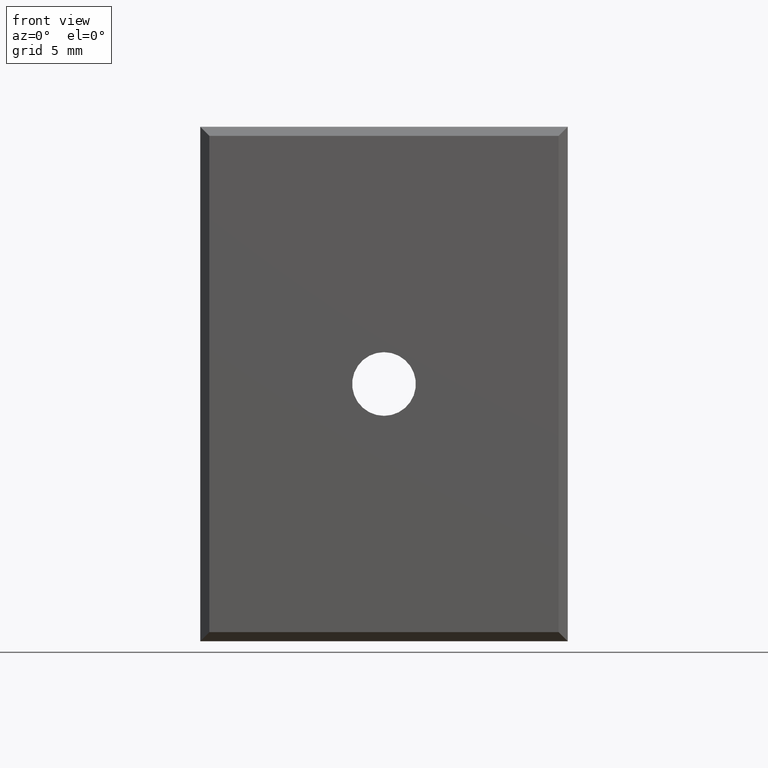
[diagram: clean part render]
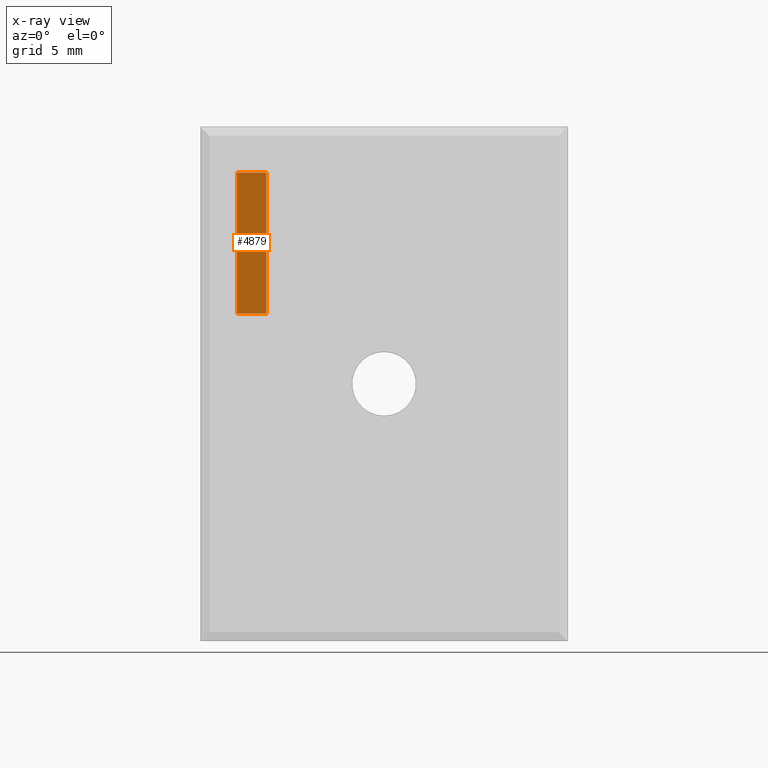
[diagram: x-ray — body ghosted, one internal face saturated and labeled with its STEP entity id]
A machine part, front view, then the same camera in x-ray: the body is ghosted and one INTERNAL B-rep face — a face not visible from any outside direction — is saturated and labeled: STEP entity #4879.
In plain terms, the highlighted planar face has unit normal (0, 1, -0).
Its self-contained STEP definition (entity closure, byte-faithful):
#180 = EDGE_LOOP ( 'NONE', ( #476, #435, #472, #460 ) ) ;
#435 = ORIENTED_EDGE ( 'NONE', *, *, #4503, .F. ) ;
#460 = ORIENTED_EDGE ( 'NONE', *, *, #4522, .T. ) ;
#472 = ORIENTED_EDGE ( 'NONE', *, *, #4510, .T. ) ;
#476 = ORIENTED_EDGE ( 'NONE', *, *, #4531, .F. ) ;
#968 = FACE_OUTER_BOUND ( 'NONE', #180, .T. ) ;
#972 = PLANE ( 'NONE',  #6601 ) ;
#973 = CARTESIAN_POINT ( 'NONE',  ( 52.00000000000001400, 19.24999999999999600, -15.25000000000000000 ) ) ;
#977 = DIRECTION ( 'NONE',  ( 0.0000000000000000000, 3.016910393003144300E-016, 1.000000000000000000 ) ) ;
#1018 = DIRECTION ( 'NONE',  ( 0.0000000000000000000, 1.000000000000000000, -3.016910393003144300E-016 ) ) ;
#1636 = VERTEX_POINT ( 'NONE', #2036 ) ;
#1638 = VERTEX_POINT ( 'NONE', #1995 ) ;
#1709 = VERTEX_POINT ( 'NONE', #2097 ) ;
#1744 = VERTEX_POINT ( 'NONE', #2071 ) ;
#1995 = CARTESIAN_POINT ( 'NONE',  ( 3.000000000000000900, 19.25000000000000000, -15.25000000000000000 ) ) ;
#2036 = CARTESIAN_POINT ( 'NONE',  ( 5.400000000000002100, 19.25000000000000000, -3.750000000000003600 ) ) ;
#2071 = CARTESIAN_POINT ( 'NONE',  ( 3.000000000000000900, 19.25000000000000000, -3.750000000000003600 ) ) ;
#2097 = CARTESIAN_POINT ( 'NONE',  ( 5.400000000000002100, 19.24999999999999600, -15.25000000000000000 ) ) ;
#2887 = LINE ( 'NONE', #2888, #6099 ) ;
#2888 = CARTESIAN_POINT ( 'NONE',  ( 52.00000000000001400, 19.25000000000000000, -3.750000000000003600 ) ) ;
#2900 = DIRECTION ( 'NONE',  ( 1.000000000000000000, -0.0000000000000000000, 0.0000000000000000000 ) ) ;
#2924 = DIRECTION ( 'NONE',  ( -0.0000000000000000000, -0.0000000000000000000, -1.000000000000000000 ) ) ;
#2929 = LINE ( 'NONE', #2936, #6147 ) ;
#2936 = CARTESIAN_POINT ( 'NONE',  ( 3.000000000000000000, 19.25000000000000000, -9.500000000000001800 ) ) ;
#2958 = CARTESIAN_POINT ( 'NONE',  ( 52.00000000000001400, 19.24999999999999600, -15.25000000000000000 ) ) ;
#2964 = DIRECTION ( 'NONE',  ( 1.000000000000000000, -0.0000000000000000000, 0.0000000000000000000 ) ) ;
#2965 = LINE ( 'NONE', #2969, #6160 ) ;
#2969 = CARTESIAN_POINT ( 'NONE',  ( 5.400000000000002100, 19.24999999999999600, -15.25000000000000000 ) ) ;
#2981 = DIRECTION ( 'NONE',  ( -0.0000000000000000000, -3.016910393003144300E-016, -1.000000000000000000 ) ) ;
#2993 = LINE ( 'NONE', #2958, #6144 ) ;
#4503 = EDGE_CURVE ( 'NONE', #1744, #1636, #2887, .T. ) ;
#4510 = EDGE_CURVE ( 'NONE', #1744, #1638, #2929, .T. ) ;
#4522 = EDGE_CURVE ( 'NONE', #1638, #1709, #2993, .T. ) ;
#4531 = EDGE_CURVE ( 'NONE', #1636, #1709, #2965, .T. ) ;
#4879 = ADVANCED_FACE ( 'NONE', ( #968 ), #972, .F. ) ;
#6099 = VECTOR ( 'NONE', #2900, 1000.000000000000000 ) ;
#6144 = VECTOR ( 'NONE', #2964, 1000.000000000000000 ) ;
#6147 = VECTOR ( 'NONE', #2924, 1000.000000000000000 ) ;
#6160 = VECTOR ( 'NONE', #2981, 1000.000000000000000 ) ;
#6601 = AXIS2_PLACEMENT_3D ( 'NONE', #973, #1018, #977 ) ;